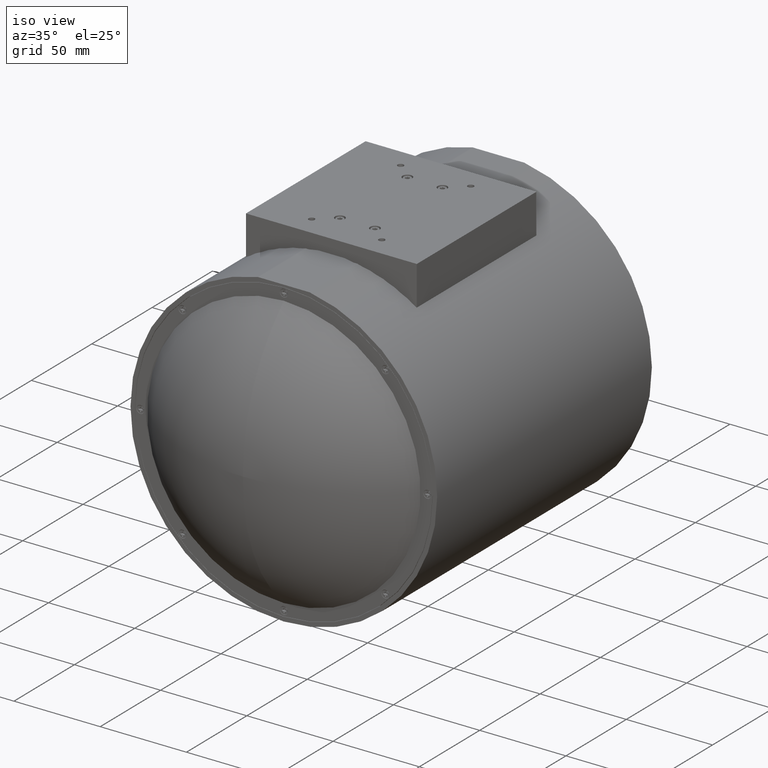
[diagram: clean part render]
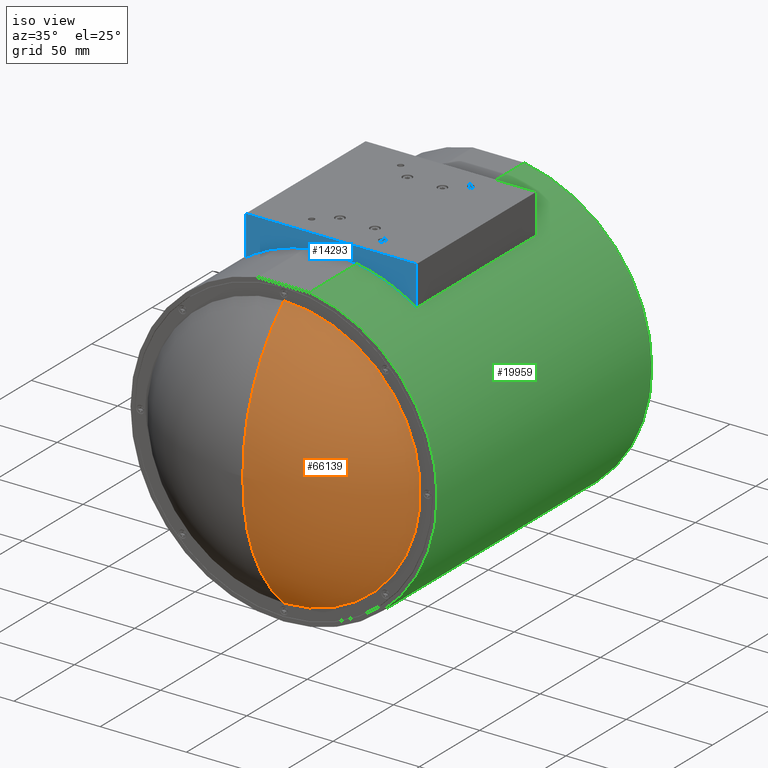
[diagram: same view with three faces highlighted in distinct colors, each labeled with its STEP entity id]
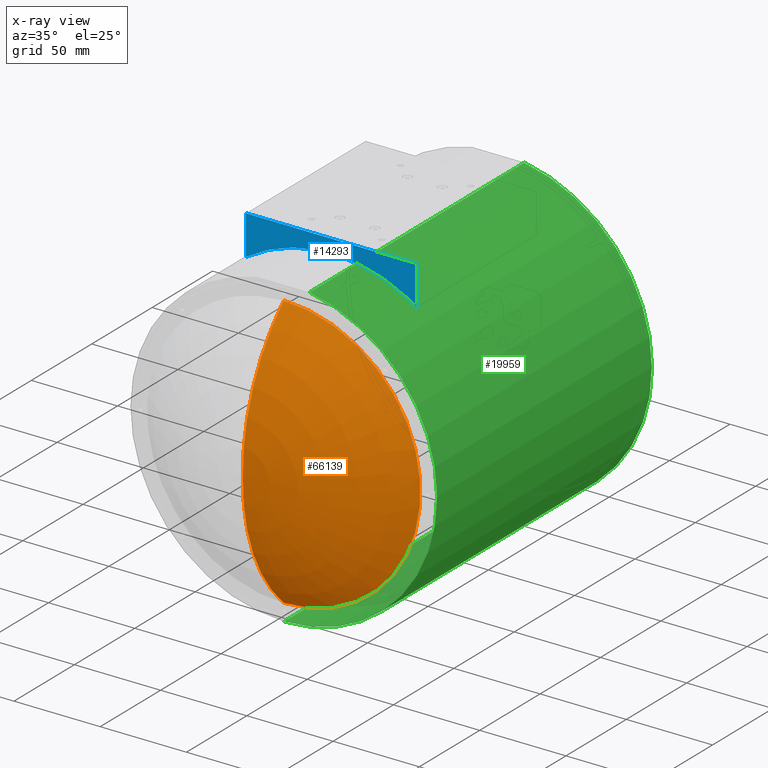
[diagram: x-ray of the same camera — body ghosted, the three highlighted faces saturated]
A machine part, iso view with three faces highlighted in distinct colors.
The next image is the same camera in x-ray (body ghosted, the three faces saturated) — at least one of them is partly hidden behind the body in this view.
Their STEP definitions:

[orange] entity #66139 — the highlighted toroidal blend (fillet) surface has major radius 2.1746 mm and minor (blend) radius 104.425 mm.
#116 = ORIENTED_EDGE ( 'NONE', *, *, #48092, .T. ) ;
#186 = CARTESIAN_POINT ( 'NONE',  ( -1.570761672972061700, 0.3196992588359077700, 0.8843357499627972900 ) ) ;
#3156 = DIRECTION ( 'NONE',  ( -1.000000000000000000, 0.0000000000000000000, 1.081803655455183600E-014 ) ) ;
#3540 = DIRECTION ( 'NONE',  ( -1.089758663891266100E-014, 0.0000000000000000000, -1.000000000000000000 ) ) ;
#5426 = DIRECTION ( 'NONE',  ( -1.734671887161695800E-018, -1.000000000000000000, -8.475147852435177800E-016 ) ) ;
#9697 = DIRECTION ( 'NONE',  ( 1.000000000000000000, -1.734671887152439200E-018, -1.092198567960834800E-014 ) ) ;
#11523 = VERTEX_POINT ( 'NONE', #27979 ) ;
#11817 = AXIS2_PLACEMENT_3D ( 'NONE', #64712, #17795, #3156 ) ;
#16532 = EDGE_LOOP ( 'NONE', ( #116, #49027, #37838 ) ) ;
#17795 = DIRECTION ( 'NONE',  ( -1.734671887152883700E-018, -1.000000000000000000, -2.898355118681010300E-017 ) ) ;
#18382 = CARTESIAN_POINT ( 'NONE',  ( -1.570761672972063300, 0.3196992588359078800, 0.7131049345043535300 ) ) ;
#19060 = FACE_OUTER_BOUND ( 'NONE', #16532, .T. ) ;
#23049 = CARTESIAN_POINT ( 'NONE',  ( -1.570761672972062600, -3.790622844625817700, 0.7987203422335720200 ) ) ;
#23282 = DIRECTION ( 'NONE',  ( 1.083113793989490300E-014, 0.0000000000000000000, 1.000000000000000000 ) ) ;
#23819 = EDGE_CURVE ( 'NONE', #62974, #57996, #62217, .T. ) ;
#27979 = CARTESIAN_POINT ( 'NONE',  ( -1.570761672972095900, -2.455622844625818600, -2.319990021853500100 ) ) ;
#29072 = AXIS2_PLACEMENT_3D ( 'NONE', #56627, #5426, #57069 ) ;
#32606 = AXIS2_PLACEMENT_3D ( 'NONE', #186, #9697, #3540 ) ;
#35016 = TOROIDAL_SURFACE ( 'NONE', #29072, 0.08561540772922192300, 4.111213664144283800 ) ;
#37838 = ORIENTED_EDGE ( 'NONE', *, *, #58048, .F. ) ;
#43408 = DIRECTION ( 'NONE',  ( -1.000000000000000000, 1.734671887152543000E-018, 1.079952099969361300E-014 ) ) ;
#44445 = CIRCLE ( 'NONE', #11817, 3.118710364087075700 ) ;
#48092 = EDGE_CURVE ( 'NONE', #11523, #62974, #44445, .T. ) ;
#49027 = ORIENTED_EDGE ( 'NONE', *, *, #23819, .T. ) ;
#49481 = CARTESIAN_POINT ( 'NONE',  ( -1.570761672972028600, -2.455622844625818600, 3.917430706320651300 ) ) ;
#54355 = AXIS2_PLACEMENT_3D ( 'NONE', #18382, #43408, #23282 ) ;
#56627 = CARTESIAN_POINT ( 'NONE',  ( -1.570761672972062600, 0.3196992588359078300, 0.7987203422335753500 ) ) ;
#57069 = DIRECTION ( 'NONE',  ( -1.080546191379261300E-014, 8.475147852435176800E-016, -1.000000000000000000 ) ) ;
#57996 = VERTEX_POINT ( 'NONE', #23049 ) ;
#58048 = EDGE_CURVE ( 'NONE', #11523, #57996, #62676, .T. ) ;
#62217 = CIRCLE ( 'NONE', #32606, 4.111213664144283800 ) ;
#62676 = CIRCLE ( 'NONE', #54355, 4.111213664144283800 ) ;
#62974 = VERTEX_POINT ( 'NONE', #49481 ) ;
#64712 = CARTESIAN_POINT ( 'NONE',  ( -1.570761672972062600, -2.455622844625818600, 0.7987203422335753500 ) ) ;
#66139 = ADVANCED_FACE ( 'NONE', ( #19060 ), #35016, .T. ) ;

[blue] entity #14293 — the highlighted planar face has unit normal (-0, 1, 0).
#836 = DIRECTION ( 'NONE',  ( 1.000000000000000000, 6.245004513516493200E-017, 1.108240629956715200E-016 ) ) ;
#4263 = PLANE ( 'NONE',  #47353 ) ;
#4383 = EDGE_CURVE ( 'NONE', #31050, #27246, #55212, .T. ) ;
#5257 = CARTESIAN_POINT ( 'NONE',  ( -3.520761672972044600, -0.9056228446258178800, 4.605178668100231600 ) ) ;
#9342 = EDGE_CURVE ( 'NONE', #27246, #17965, #52317, .T. ) ;
#10643 = DIRECTION ( 'NONE',  ( 1.247238774109135200E-016, 1.602807691679004700E-016, 1.000000000000000000 ) ) ;
#14293 = ADVANCED_FACE ( 'NONE', ( #16636 ), #4263, .F. ) ;
#14391 = CARTESIAN_POINT ( 'NONE',  ( -3.520761672972044600, -0.9056228446258178800, 3.705178668100232100 ) ) ;
#15747 = DIRECTION ( 'NONE',  ( -5.551115123125793800E-017, -1.000000000000000000, -1.803158653138880200E-016 ) ) ;
#15948 = DIRECTION ( 'NONE',  ( -6.245004513516495700E-017, 1.000000000000000000, 1.803158653138880200E-016 ) ) ;
#15982 = CARTESIAN_POINT ( 'NONE',  ( -1.570761672972035900, -0.9056228446258189900, 0.7987203422335083000 ) ) ;
#16400 = DIRECTION ( 'NONE',  ( 1.000000000000000000, 7.805279981897867800E-017, 1.170791997284680000E-016 ) ) ;
#16636 = FACE_OUTER_BOUND ( 'NONE', #48636, .T. ) ;
#17965 = VERTEX_POINT ( 'NONE', #5257 ) ;
#19298 = AXIS2_PLACEMENT_3D ( 'NONE', #15982, #15747, #16400 ) ;
#22486 = CARTESIAN_POINT ( 'NONE',  ( 0.3792383270279696700, -0.9056228446258178800, 3.705178668100232600 ) ) ;
#24895 = CARTESIAN_POINT ( 'NONE',  ( -1.570761672972035900, -0.9056228446258189900, 0.7987203422335083000 ) ) ;
#25875 = DIRECTION ( 'NONE',  ( -1.247238774109135200E-016, -1.602807691679004700E-016, -1.000000000000000000 ) ) ;
#26653 = ORIENTED_EDGE ( 'NONE', *, *, #54733, .F. ) ;
#27246 = VERTEX_POINT ( 'NONE', #14391 ) ;
#31050 = VERTEX_POINT ( 'NONE', #22486 ) ;
#31155 = CARTESIAN_POINT ( 'NONE',  ( -3.520761672972044600, -0.9056228446258178800, 4.605178668100231600 ) ) ;
#31836 = ORIENTED_EDGE ( 'NONE', *, *, #64799, .F. ) ;
#33158 = VECTOR ( 'NONE', #10643, 39.37007874015748100 ) ;
#36954 = CARTESIAN_POINT ( 'NONE',  ( 0.3792383270279712800, -0.9056228446258178800, 4.605178668100231600 ) ) ;
#43156 = LINE ( 'NONE', #49200, #66407 ) ;
#43862 = DIRECTION ( 'NONE',  ( 1.000000000000000000, 6.245004513516492000E-017, 2.290070305688752100E-017 ) ) ;
#44246 = ORIENTED_EDGE ( 'NONE', *, *, #4383, .F. ) ;
#47353 = AXIS2_PLACEMENT_3D ( 'NONE', #24895, #15948, #836 ) ;
#48636 = EDGE_LOOP ( 'NONE', ( #26653, #31836, #59963, #44246 ) ) ;
#49200 = CARTESIAN_POINT ( 'NONE',  ( -1.570761672972035700, -0.9056228446258178800, 4.605178668100231600 ) ) ;
#51970 = CARTESIAN_POINT ( 'NONE',  ( 0.3792383270279712800, -0.9056228446258178800, 4.605178668100231600 ) ) ;
#52317 = LINE ( 'NONE', #31155, #33158 ) ;
#54733 = EDGE_CURVE ( 'NONE', #60141, #31050, #58993, .T. ) ;
#55212 = CIRCLE ( 'NONE', #19298, 3.500000000000012400 ) ;
#58993 = LINE ( 'NONE', #51970, #66225 ) ;
#59963 = ORIENTED_EDGE ( 'NONE', *, *, #9342, .F. ) ;
#60141 = VERTEX_POINT ( 'NONE', #36954 ) ;
#64799 = EDGE_CURVE ( 'NONE', #17965, #60141, #43156, .T. ) ;
#66225 = VECTOR ( 'NONE', #25875, 39.37007874015748100 ) ;
#66407 = VECTOR ( 'NONE', #43862, 39.37007874015748100 ) ;

[green] entity #19959 — the highlighted cylindrical surface (partial cylindrical patch) has radius 88.9 mm, axis along (-0, -1, -0).
#1595 = VECTOR ( 'NONE', #8538, 39.37007874015748100 ) ;
#3360 = DIRECTION ( 'NONE',  ( 0.0000000000000000000, 0.0000000000000000000, -1.000000000000000000 ) ) ;
#8538 = DIRECTION ( 'NONE',  ( -0.0000000000000000000, -1.000000000000000000, -0.0000000000000000000 ) ) ;
#8573 = EDGE_CURVE ( 'NONE', #14497, #41263, #16452, .T. ) ;
#8715 = ORIENTED_EDGE ( 'NONE', *, *, #22829, .F. ) ;
#8868 = CARTESIAN_POINT ( 'NONE',  ( -0.9812703668444591200, -2.455622844625818100, 4.248720342233508700 ) ) ;
#8926 = ORIENTED_EDGE ( 'NONE', *, *, #8573, .F. ) ;
#9859 = AXIS2_PLACEMENT_3D ( 'NONE', #18897, #54403, #64729 ) ;
#13367 = AXIS2_PLACEMENT_3D ( 'NONE', #45012, #59524, #13947 ) ;
#13947 = DIRECTION ( 'NONE',  ( 0.0000000000000000000, 0.0000000000000000000, 1.000000000000000000 ) ) ;
#14497 = VERTEX_POINT ( 'NONE', #27281 ) ;
#14530 = CARTESIAN_POINT ( 'NONE',  ( -1.570761672972037500, 4.544377155374181900, 0.7987203422335083000 ) ) ;
#16452 = LINE ( 'NONE', #57058, #29174 ) ;
#18628 = CARTESIAN_POINT ( 'NONE',  ( -0.9812703668444591200, 4.544377155374181900, 4.248720342233508700 ) ) ;
#18897 = CARTESIAN_POINT ( 'NONE',  ( -1.570761672972037500, -2.455622844625818100, 0.7987203422335083000 ) ) ;
#19959 = ADVANCED_FACE ( 'NONE', ( #37318 ), #46902, .T. ) ;
#22829 = EDGE_CURVE ( 'NONE', #37502, #14497, #24997, .T. ) ;
#24997 = CIRCLE ( 'NONE', #13367, 3.500000000000000000 ) ;
#27281 = CARTESIAN_POINT ( 'NONE',  ( -1.570761672972037500, 4.544377155374181900, -2.701279657766491500 ) ) ;
#28289 = CIRCLE ( 'NONE', #9859, 3.500000000000000000 ) ;
#28909 = EDGE_CURVE ( 'NONE', #37502, #59543, #36924, .T. ) ;
#29174 = VECTOR ( 'NONE', #56619, 39.37007874015748100 ) ;
#34288 = EDGE_LOOP ( 'NONE', ( #8926, #8715, #46243, #40008 ) ) ;
#36924 = LINE ( 'NONE', #18628, #1595 ) ;
#37304 = CARTESIAN_POINT ( 'NONE',  ( -0.9812703668444591200, 4.544377155374181900, 4.248720342233508700 ) ) ;
#37318 = FACE_OUTER_BOUND ( 'NONE', #34288, .T. ) ;
#37502 = VERTEX_POINT ( 'NONE', #37304 ) ;
#38011 = CARTESIAN_POINT ( 'NONE',  ( -1.570761672972037500, -2.455622844625818100, -2.701279657766491500 ) ) ;
#40008 = ORIENTED_EDGE ( 'NONE', *, *, #57669, .T. ) ;
#40804 = AXIS2_PLACEMENT_3D ( 'NONE', #14530, #41931, #3360 ) ;
#41263 = VERTEX_POINT ( 'NONE', #38011 ) ;
#41931 = DIRECTION ( 'NONE',  ( -0.0000000000000000000, -1.000000000000000000, -0.0000000000000000000 ) ) ;
#45012 = CARTESIAN_POINT ( 'NONE',  ( -1.570761672972037500, 4.544377155374181900, 0.7987203422335083000 ) ) ;
#46243 = ORIENTED_EDGE ( 'NONE', *, *, #28909, .T. ) ;
#46902 = CYLINDRICAL_SURFACE ( 'NONE', #40804, 3.500000000000000000 ) ;
#54403 = DIRECTION ( 'NONE',  ( 0.0000000000000000000, 1.000000000000000000, 0.0000000000000000000 ) ) ;
#56619 = DIRECTION ( 'NONE',  ( -0.0000000000000000000, -1.000000000000000000, -0.0000000000000000000 ) ) ;
#57058 = CARTESIAN_POINT ( 'NONE',  ( -1.570761672972037500, 4.544377155374181900, -2.701279657766491500 ) ) ;
#57669 = EDGE_CURVE ( 'NONE', #59543, #41263, #28289, .T. ) ;
#59524 = DIRECTION ( 'NONE',  ( 0.0000000000000000000, 1.000000000000000000, 0.0000000000000000000 ) ) ;
#59543 = VERTEX_POINT ( 'NONE', #8868 ) ;
#64729 = DIRECTION ( 'NONE',  ( 0.0000000000000000000, 0.0000000000000000000, 1.000000000000000000 ) ) ;